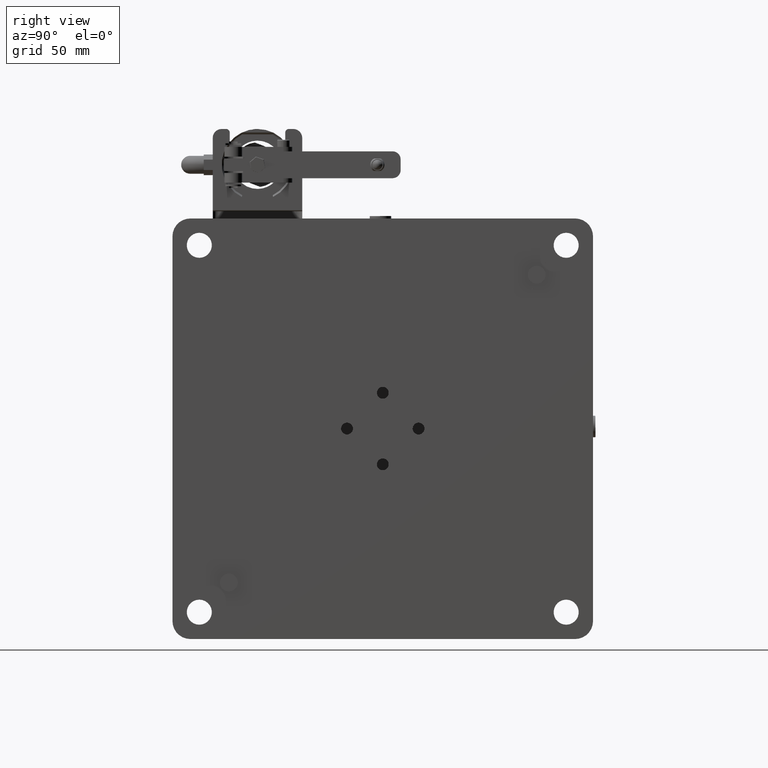
[diagram: clean part render]
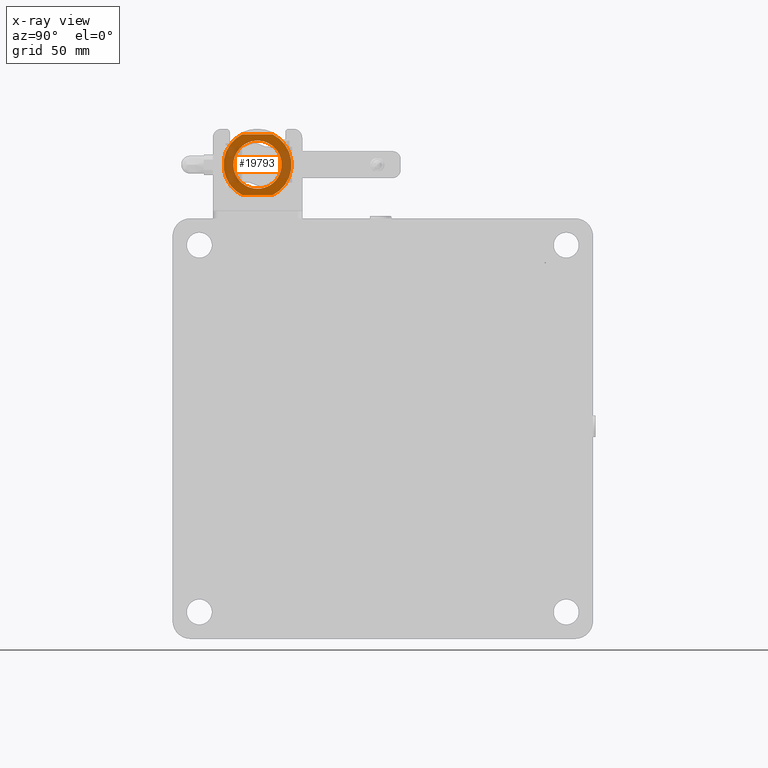
[diagram: x-ray — body ghosted, one internal face saturated and labeled with its STEP entity id]
A machine part, right view, then the same camera in x-ray: the body is ghosted and one INTERNAL B-rep face — a face not visible from any outside direction — is saturated and labeled: STEP entity #19793.
In plain terms, the highlighted planar face has unit normal (1, 0, -0).
Its self-contained STEP definition (entity closure, byte-faithful):
#319 = CARTESIAN_POINT ( 'NONE',  ( 478.4299721316714908, -70.41277426412671048, 725.6094016609064283 ) ) ;
#444 = CARTESIAN_POINT ( 'NONE',  ( 478.4299721316713772, -82.53106146318188507, 734.0871233093389492 ) ) ;
#576 = CARTESIAN_POINT ( 'NONE',  ( 478.4299721316717182, -82.57221340234056584, 744.0277515702651954 ) ) ;
#703 = CARTESIAN_POINT ( 'NONE',  ( 478.4299721316714340, -82.10182286779185290, 745.1229701118013509 ) ) ;
#813 = CARTESIAN_POINT ( 'NONE',  ( 478.4299721316716045, -69.99999999999995737, 762.1094016609064283 ) ) ;
#825 = CARTESIAN_POINT ( 'NONE',  ( 478.4299721316716045, -77.19551160918081223, 727.6867008416858198 ) ) ;
#843 = CARTESIAN_POINT ( 'NONE',  ( 478.4299721316714908, -56.61031980220248983, 737.3650884004620139 ) ) ;
#947 = DIRECTION ( 'NONE',  ( 1.000000000000000000, 1.331348243545152051E-16, -3.469695361064461299E-15 ) ) ;
#962 = CARTESIAN_POINT ( 'NONE',  ( 478.4299721316716045, -83.29304100346465134, 741.4643341623623201 ) ) ;
#977 = CARTESIAN_POINT ( 'NONE',  ( 478.4299721316716045, -65.08165009070974349, 751.6816150632687368 ) ) ;
#1095 = CARTESIAN_POINT ( 'NONE',  ( 478.4299721316715477, -66.47630045167740320, 752.1543813908563152 ) ) ;
#1186 = DIRECTION ( 'NONE',  ( 1.431843656995674906E-16, -1.000000000000000000, -1.431843656995674413E-16 ) ) ;
#1220 = CARTESIAN_POINT ( 'NONE',  ( 478.4299721316716614, -56.74570391391159774, 741.6734567740141983 ) ) ;
#1278 = ORIENTED_EDGE ( 'NONE', *, *, #1554, .T. ) ;
#1359 = CARTESIAN_POINT ( 'NONE',  ( 478.4299721316714908, -65.38832722186324986, 751.7981389091871733 ) ) ;
#1474 = CARTESIAN_POINT ( 'NONE',  ( 478.4299721316715477, -56.95502027041366233, 735.5857021115166390 ) ) ;
#1554 = EDGE_CURVE ( 'NONE', #17555, #22009, #9063, .T. ) ;
#1577 = CARTESIAN_POINT ( 'NONE',  ( 478.4299721316714908, -81.33129956679013617, 746.4479967857913607 ) ) ;
#1730 = CARTESIAN_POINT ( 'NONE',  ( 478.4299721316715477, -68.35526219502591516, 725.6845275030319726 ) ) ;
#1866 = CARTESIAN_POINT ( 'NONE',  ( 478.4299721316714908, -72.42960473721682035, 725.8298030196871196 ) ) ;
#1972 = CARTESIAN_POINT ( 'NONE',  ( 478.4299721316714908, -69.17409593088055431, 725.6094016609064283 ) ) ;
#2364 = CARTESIAN_POINT ( 'NONE',  ( 478.4299721316716045, -83.49996757574207606, 738.2840283873729277 ) ) ;
#2493 = CARTESIAN_POINT ( 'NONE',  ( 478.4299721316714908, -83.25429608610188836, 736.5453465478392445 ) ) ;
#2573 = ORIENTED_EDGE ( 'NONE', *, *, #4164, .T. ) ;
#2629 = CARTESIAN_POINT ( 'NONE',  ( 478.4299721316714908, -81.26824441751611516, 731.6743591960369031 ) ) ;
#2750 = CARTESIAN_POINT ( 'NONE',  ( 478.4299721316714908, -82.40067545656390280, 733.7711653038752502 ) ) ;
#2840 = CARTESIAN_POINT ( 'NONE',  ( 478.4299721316716045, -61.51471862576136118, 756.1094016609064283 ) ) ;
#2863 = CARTESIAN_POINT ( 'NONE',  ( 478.4299721316715477, -74.25154100632563825, 726.2929930738298481 ) ) ;
#2881 = CARTESIAN_POINT ( 'NONE',  ( 478.4299721316714340, -58.10724299048292352, 745.5265255764596759 ) ) ;
#2958 = CARTESIAN_POINT ( 'NONE',  ( 478.4299721316716045, -69.99999999999992895, 739.1094016609064283 ) ) ;
#2995 = CARTESIAN_POINT ( 'NONE',  ( 478.4299721316714340, -74.56236594720913047, 751.8226547282067713 ) ) ;
#3010 = CARTESIAN_POINT ( 'NONE',  ( 478.4299721316716045, -65.05722260786401989, 751.6720341310814320 ) ) ;
#3134 = CARTESIAN_POINT ( 'NONE',  ( 478.4299721316714908, -57.07560362923093322, 743.0524859625379577 ) ) ;
#3240 = CARTESIAN_POINT ( 'NONE',  ( 478.4299721316715477, -73.20499182827393270, 752.2267162836750458 ) ) ;
#3255 = CARTESIAN_POINT ( 'NONE',  ( 478.4299721316716614, -64.60670242972531696, 751.4936972319353572 ) ) ;
#3391 = CARTESIAN_POINT ( 'NONE',  ( 478.4299721316715477, -63.29035800220918162, 750.8279428574011263 ) ) ;
#3508 = CARTESIAN_POINT ( 'NONE',  ( 478.4299721316715477, -62.41877037334995748, 727.9389668819129611 ) ) ;
#3640 = CARTESIAN_POINT ( 'NONE',  ( 478.4299721316714908, -71.02941761316724012, 725.6375738517033369 ) ) ;
#3761 = CARTESIAN_POINT ( 'NONE',  ( 478.4299721316714908, -56.72040135877344369, 736.6797969237130701 ) ) ;
#3846 = DIRECTION ( 'NONE',  ( -2.921639538487251500E-15, 0.000000000000000000, -1.000000000000000000 ) ) ;
#3882 = CARTESIAN_POINT ( 'NONE',  ( 478.4299721316713203, -60.78342394690292849, 729.2340683460445234 ) ) ;
#3973 = CARTESIAN_POINT ( 'NONE',  ( 478.4299721316714908, -69.99999999999994316, 725.6094016609064283 ) ) ;
#4164 = EDGE_CURVE ( 'NONE', #22754, #8934, #14518, .T. ) ;
#4264 = FACE_OUTER_BOUND ( 'NONE', #11112, .T. ) ;
#4278 = CARTESIAN_POINT ( 'NONE',  ( 478.4299721316716614, -81.42270081919069469, 746.3049132701079316 ) ) ;
#4372 = VERTEX_POINT ( 'NONE', #3973 ) ;
#4395 = CARTESIAN_POINT ( 'NONE',  ( 478.4299721316713772, -83.42484170587707126, 737.4644885279240043 ) ) ;
#4530 = CARTESIAN_POINT ( 'NONE',  ( 478.4299721316713772, -83.20041984843327043, 736.2773553748264703 ) ) ;
#4610 = CIRCLE ( 'NONE', #7858, 19.00000000000001776 ) ;
#4660 = CARTESIAN_POINT ( 'NONE',  ( 478.4299721316714340, -83.19500379201163298, 741.9962463943538751 ) ) ;
#4774 = CARTESIAN_POINT ( 'NONE',  ( 478.4299721316714908, -83.11731462291058392, 735.9044098330263068 ) ) ;
#4790 = CARTESIAN_POINT ( 'NONE',  ( 478.4299721316716045, -58.45100072700311955, 746.1150469780661751 ) ) ;
#4893 = CARTESIAN_POINT ( 'NONE',  ( 478.4299721316714908, -77.72540610291318330, 750.1815595656532878 ) ) ;
#5041 = CARTESIAN_POINT ( 'NONE',  ( 478.4299721316716045, -57.75971092177155697, 744.8119314998156142 ) ) ;
#5149 = CARTESIAN_POINT ( 'NONE',  ( 478.4299721316716045, -75.70252983872629216, 751.3496907392066078 ) ) ;
#5165 = CARTESIAN_POINT ( 'NONE',  ( 478.4299721316714908, -58.92784209534849538, 746.8348077639222993 ) ) ;
#5290 = CARTESIAN_POINT ( 'NONE',  ( 478.4299721316714340, -56.49998378787105935, 738.6967150240240017 ) ) ;
#5350 = CARTESIAN_POINT ( 'NONE',  ( 478.4299721316715477, -69.99999999999994316, 752.6094016609064283 ) ) ;
#5409 = CARTESIAN_POINT ( 'NONE',  ( 478.4299721316716614, -72.83204628630913646, 752.3098215092569490 ) ) ;
#5428 = CARTESIAN_POINT ( 'NONE',  ( 478.4299721316714908, -59.79532746813879385, 730.2222436525748890 ) ) ;
#5547 = CARTESIAN_POINT ( 'NONE',  ( 478.4299721316714340, -66.79500817196351647, 725.9920870380376527 ) ) ;
#5665 = CARTESIAN_POINT ( 'NONE',  ( 478.4299721316714908, -69.99999999999994316, 725.6094016609064283 ) ) ;
#5679 = CARTESIAN_POINT ( 'NONE',  ( 478.4299721316714340, -72.10083195459263550, 725.7731525199142197 ) ) ;
#5796 = CARTESIAN_POINT ( 'NONE',  ( 478.4299721316715477, -64.29747016068603216, 726.8691125828455597 ) ) ;
#5921 = CARTESIAN_POINT ( 'NONE',  ( 478.4299721316715477, -57.37844486314536141, 734.3186102356504534 ) ) ;
#6061 = AXIS2_PLACEMENT_3D ( 'NONE', #2958, #18463, #22784 ) ;
#6170 = AXIS2_PLACEMENT_3D ( 'NONE', #813, #947, #18486 ) ;
#6319 = CARTESIAN_POINT ( 'NONE',  ( 478.4299721316713772, -83.47185618042841782, 740.1386659261938803 ) ) ;
#6439 = CARTESIAN_POINT ( 'NONE',  ( 478.4299721316716614, -82.38429557080588950, 744.5026992316246606 ) ) ;
#6564 = CARTESIAN_POINT ( 'NONE',  ( 478.4299721316714340, -81.23537234948373964, 731.6247647291347675 ) ) ;
#6690 = CARTESIAN_POINT ( 'NONE',  ( 478.4299721316714908, -83.28394183366090431, 741.5151280948172143 ) ) ;
#6709 = CARTESIAN_POINT ( 'NONE',  ( 478.4299721316715477, -59.16324843227747721, 747.1662315794293363 ) ) ;
#6815 = CARTESIAN_POINT ( 'NONE',  ( 478.4299721316713772, -82.62155513686766994, 743.9001930861415985 ) ) ;
#6827 = CARTESIAN_POINT ( 'NONE',  ( 478.4299721316715477, -69.99999999999994316, 752.6094016609064283 ) ) ;
#6931 = CARTESIAN_POINT ( 'NONE',  ( 478.4299721316716045, -77.48463693170114652, 750.3447740104594459 ) ) ;
#6946 = CARTESIAN_POINT ( 'NONE',  ( 478.4299721316716045, -68.25557172911875625, 752.4990605802846630 ) ) ;
#7062 = CARTESIAN_POINT ( 'NONE',  ( 478.4299721316716614, -70.82590406955496576, 752.6094016609067694 ) ) ;
#7078 = CARTESIAN_POINT ( 'NONE',  ( 478.4299721316714340, -56.66373844659649706, 737.0086367959227118 ) ) ;
#7200 = CARTESIAN_POINT ( 'NONE',  ( 478.4299721316717182, -56.76136601395315040, 741.7540003498867236 ) ) ;
#7306 = CARTESIAN_POINT ( 'NONE',  ( 478.4299721316715477, -77.00564531702032411, 750.6584009339579779 ) ) ;
#7322 = CARTESIAN_POINT ( 'NONE',  ( 478.4299721316714908, -57.42778659766328531, 734.1910517515411811 ) ) ;
#7418 = DIRECTION ( 'NONE',  ( 1.000000000000000000, 1.387778780781436801E-15, -4.163336342344322827E-15 ) ) ;
#7461 = CARTESIAN_POINT ( 'NONE',  ( 478.4299721316713203, -61.94317008156579618, 728.2726500932251383 ) ) ;
#7584 = CARTESIAN_POINT ( 'NONE',  ( 478.4299721316712635, -67.43594488690416711, 725.8551055748120007 ) ) ;
#7596 = ORIENTED_EDGE ( 'NONE', *, *, #19647, .T. ) ;
#7858 = AXIS2_PLACEMENT_3D ( 'NONE', #25076, #7418, #3846 ) ;
#8220 = CARTESIAN_POINT ( 'NONE',  ( 478.4299721316714908, -82.92439637086823723, 735.1663173595691205 ) ) ;
#8350 = CARTESIAN_POINT ( 'NONE',  ( 478.4299721316714908, -77.29166785255317507, 727.7478518167772563 ) ) ;
#8473 = CARTESIAN_POINT ( 'NONE',  ( 478.4299721316715477, -81.71854119620185486, 745.8190436592793731 ) ) ;
#8599 = CARTESIAN_POINT ( 'NONE',  ( 478.4299721316714908, -82.47752373178279583, 733.9550611558689752 ) ) ;
#8616 = CARTESIAN_POINT ( 'NONE',  ( 478.4299721316714340, -56.69353043206317011, 736.8306792168876882 ) ) ;
#8728 = CARTESIAN_POINT ( 'NONE',  ( 478.4299721316715477, -82.81640858696401608, 743.3609426676664498 ) ) ;
#8743 = CARTESIAN_POINT ( 'NONE',  ( 478.4299721316717182, -56.50003242425783156, 739.9347749346711680 ) ) ;
#8846 = CARTESIAN_POINT ( 'NONE',  ( 478.4299721316714340, -74.99471061857745724, 751.6514742875641559 ) ) ;
#8860 = CARTESIAN_POINT ( 'NONE',  ( 478.4299721316716045, -67.64504644749912643, 752.4024387696607619 ) ) ;
#8934 = VERTEX_POINT ( 'NONE', #15730 ) ;
#8968 = CARTESIAN_POINT ( 'NONE',  ( 478.4299721316715477, -76.41712391530930404, 751.0021586705188383 ) ) ;
#8986 = CARTESIAN_POINT ( 'NONE',  ( 478.4299721316716045, -56.73542148888962799, 741.6197146364664832 ) ) ;
#9063 = LINE ( 'NONE', #20622, #24373 ) ;
#9099 = CARTESIAN_POINT ( 'NONE',  ( 478.4299721316714908, -75.07515318747715583, 751.6191436005273090 ) ) ;
#9114 = CARTESIAN_POINT ( 'NONE',  ( 478.4299721316714340, -59.65843562652155896, 747.8091273600157365 ) ) ;
#9214 = CARTESIAN_POINT ( 'NONE',  ( 478.4299721316715477, -69.99999999999994316, 752.6094016609064283 ) ) ;
#9230 = CARTESIAN_POINT ( 'NONE',  ( 478.4299721316713772, -57.18359141307799831, 734.8578606540789906 ) ) ;
#9334 = CARTESIAN_POINT ( 'NONE',  ( 478.4299721316714340, -78.05682991834707707, 749.9461532287925820 ) ) ;
#9482 = CARTESIAN_POINT ( 'NONE',  ( 478.4299721316715477, -58.63845015587993714, 731.8177338083511358 ) ) ;
#9599 = CARTESIAN_POINT ( 'NONE',  ( 478.4299721316714908, -62.99435468253182790, 727.5604023880373461 ) ) ;
#10105 = CARTESIAN_POINT ( 'NONE',  ( 478.4299721316714908, -78.88715800858918215, 728.9047291294947399 ) ) ;
#10238 = CARTESIAN_POINT ( 'NONE',  ( 478.4299721316714340, -83.23863398606999908, 736.4648029719950273 ) ) ;
#10364 = CARTESIAN_POINT ( 'NONE',  ( 478.4299721316714908, -76.01356845081669178, 727.0075787930006754 ) ) ;
#10458 = EDGE_CURVE ( 'NONE', #4372, #12829, #11188, .T. ) ;
#10486 = CARTESIAN_POINT ( 'NONE',  ( 478.4299721316716614, -83.26457851111726427, 736.5990886853672919 ) ) ;
#10611 = CARTESIAN_POINT ( 'NONE',  ( 478.4299721316714908, -82.24028907814907541, 733.4068718217630476 ) ) ;
#10631 = CARTESIAN_POINT ( 'NONE',  ( 478.4299721316714908, -68.97058238726155821, 752.5812294701092924 ) ) ;
#10758 = CARTESIAN_POINT ( 'NONE',  ( 478.4299721316714340, -62.94921518140939298, 750.6228694752987849 ) ) ;
#10875 = CARTESIAN_POINT ( 'NONE',  ( 478.4299721316716045, -57.52247626819227833, 744.2637421658706671 ) ) ;
#11009 = CARTESIAN_POINT ( 'NONE',  ( 478.4299721316715477, -67.89916804559486252, 752.4456508018985232 ) ) ;
#11112 = EDGE_LOOP ( 'NONE', ( #1278, #12095, #2573, #22421 ) ) ;
#11120 = EDGE_CURVE ( 'NONE', #8934, #17555, #11731, .T. ) ;
#11142 = CARTESIAN_POINT ( 'NONE',  ( 478.4299721316716045, -62.56495753514662539, 727.8411572433819856 ) ) ;
#11188 = B_SPLINE_CURVE_WITH_KNOTS ( 'NONE', 3,
 ( #13928, #319, #3640, #11389, #5679, #13408, #11523, #19292, #1866, #16209, #16469, #2863, #22200, #23971, #20045, #16086, #24223, #21820, #10364, #12274, #12141, #825, #8350, #17870, #14298, #10105, #12022, #18244, #14047, #19783, #12514, #6564, #2629, #21947, #20279, #10611, #2750, #8599, #23721, #444, #21700, #16344, #8220, #4774, #4530, #10238, #2493, #10486, #14417, #4395, #2364, #15959, #6319, #24109, #22079, #18371, #962, #6690, #14167, #4660, #19908, #8728, #18123, #6815, #18006, #576, #23849, #6439, #703, #8473, #12395, #4278, #20161, #1577, #14908, #22825, #16846, #12888, #9334, #4893, #24601, #6931, #20656, #7306, #8968, #5149, #15033, #18501, #9099, #22571, #8846, #2995, #12634, #3240, #5409, #24477, #16962, #16593, #24861, #16720, #7062, #9214 ),
 .UNSPECIFIED., .F., .F.,
 ( 4, 1, 1, 1, 1, 2, 2, 1, 1, 1, 1, 2, 2, 1, 1, 1, 2, 2, 2, 1, 1, 1, 2, 2, 1, 1, 1, 1, 2, 2, 1, 1, 1, 1, 2, 2, 2, 1, 1, 1, 1, 2, 2, 1, 1, 1, 1, 2, 2, 1, 1, 1, 2, 2, 2, 1, 1, 1, 2, 2, 1, 1, 1, 1, 2, 2, 1, 1, 1, 1, 2, 2, 4 ),
 ( 0.000000000000000000, 0.03124999999986316501, 0.04687499999979422016, 0.05468749999975865139, 0.05859374999974034659, 0.06054687499973047948, 0.06249999999972060544, 0.09374999999954373997, 0.1093749999994557826, 0.1171874999994122757, 0.1210937499993905292, 0.1230468749993810507, 0.1249999999993715860, 0.1562499999992092992, 0.1718749999991285859, 0.1796874999990863142, 0.1835937499990647481, 0.1874999999990432098, 0.2499999999987444765, 0.2812499999985947907, 0.2968749999985202392, 0.3046874999984798826, 0.3085937499984630628, 0.3124999999984462429, 0.3437499999982894794, 0.3593749999982145393, 0.3671874999981802890, 0.3710937499981631915, 0.3730468749981546428, 0.3749999999981460941, 0.4062499999981205590, 0.4218749999981079579, 0.4296874999981015741, 0.4335937499980985210, 0.4355468749981009080, 0.4374999999981032950, 0.4999999999980496712, 0.5312499999980185850, 0.5468749999980072607, 0.5546874999979973797, 0.5585937499979966026, 0.5605468749980003773, 0.5624999999980041521, 0.5937499999980974108, 0.6093749999981439291, 0.6171874999981707965, 0.6210937499981842302, 0.6230468749981911136, 0.6249999999981979970, 0.6562499999983711918, 0.6718749999984612309, 0.6796874999985095256, 0.6835937499985307308, 0.6874999999985519361, 0.7499999999988771204, 0.7812499999990373256, 0.7968749999991198152, 0.8046874999991611155, 0.8085937499991799893, 0.8124999999991988631, 0.8437499999993367528, 0.8593749999994061417, 0.8671874999994392264, 0.8710937499994553246, 0.8730468749994634292, 0.8749999999994715338, 0.9062499999995904387, 0.9218749999996506128, 0.9296874999996806999, 0.9335937499996970201, 0.9355468749997052358, 0.9374999999997134514, 1.000000000000000000 ),
 .UNSPECIFIED. ) ;
#11257 = CARTESIAN_POINT ( 'NONE',  ( 478.4299721316714340, -67.35540131104005468, 725.8707676748493896 ) ) ;
#11376 = CARTESIAN_POINT ( 'NONE',  ( 478.4299721316715477, -57.89817713216166339, 733.0958332100744883 ) ) ;
#11389 = CARTESIAN_POINT ( 'NONE',  ( 478.4299721316714908, -71.74442827120280697, 725.7197427415281936 ) ) ;
#11510 = CARTESIAN_POINT ( 'NONE',  ( 478.4299721316714908, -64.97772164841674680, 726.5783401977325866 ) ) ;
#11523 = CARTESIAN_POINT ( 'NONE',  ( 478.4299721316715477, -72.35495355255967809, 725.8163645521523222 ) ) ;
#11631 = CARTESIAN_POINT ( 'NONE',  ( 478.4299721316716045, -65.43763405297175950, 726.3961485935296878 ) ) ;
#11731 = CIRCLE ( 'NONE', #6061, 19.00000000000012790 ) ;
#12010 = FACE_BOUND ( 'NONE', #14476, .T. ) ;
#12022 = CARTESIAN_POINT ( 'NONE',  ( 478.4299721316714340, -79.87533331473288456, 729.8928256075848822 ) ) ;
#12095 = ORIENTED_EDGE ( 'NONE', *, *, #22922, .T. ) ;
#12141 = CARTESIAN_POINT ( 'NONE',  ( 478.4299721316714908, -77.05078481889596276, 727.5959338466348072 ) ) ;
#12274 = CARTESIAN_POINT ( 'NONE',  ( 478.4299721316714908, -76.70964199831439601, 727.3908604646190952 ) ) ;
#12395 = CARTESIAN_POINT ( 'NONE',  ( 478.4299721316716045, -81.51346781422182630, 746.1601864798365114 ) ) ;
#12514 = CARTESIAN_POINT ( 'NONE',  ( 478.4299721316716045, -81.17043477893433590, 731.5281720341529308 ) ) ;
#12527 = CARTESIAN_POINT ( 'NONE',  ( 478.4299721316716045, -65.74845899397315918, 751.9258102481014703 ) ) ;
#12634 = CARTESIAN_POINT ( 'NONE',  ( 478.4299721316715477, -73.94308430186194414, 752.0337980315853201 ) ) ;
#12780 = CARTESIAN_POINT ( 'NONE',  ( 478.4299721316717182, -67.11315526711116775, 752.3044054530939775 ) ) ;
#12829 = VERTEX_POINT ( 'NONE', #5350 ) ;
#12888 = CARTESIAN_POINT ( 'NONE',  ( 478.4299721316713772, -78.69972569887499958, 749.4509660346033115 ) ) ;
#12903 = CARTESIAN_POINT ( 'NONE',  ( 478.4299721316714908, -62.70833214754331664, 750.4709515050736854 ) ) ;
#13030 = CARTESIAN_POINT ( 'NONE',  ( 478.4299721316713772, -56.88268537716378148, 742.3143934890075570 ) ) ;
#13279 = CARTESIAN_POINT ( 'NONE',  ( 478.4299721316714340, -67.51813118610503750, 725.8394745524154814 ) ) ;
#13408 = CARTESIAN_POINT ( 'NONE',  ( 478.4299721316714908, -72.27875838488058946, 725.8029387424754759 ) ) ;
#13928 = CARTESIAN_POINT ( 'NONE',  ( 478.4299721316714908, -69.99999999999994316, 725.6094016609064283 ) ) ;
#14047 = CARTESIAN_POINT ( 'NONE',  ( 478.4299721316716045, -80.83675156751209556, 731.0525717421774061 ) ) ;
#14167 = CARTESIAN_POINT ( 'NONE',  ( 478.4299721316715477, -83.27959864122439626, 741.5390063981026287 ) ) ;
#14298 = CARTESIAN_POINT ( 'NONE',  ( 478.4299721316715477, -78.16711640390798266, 728.3197249050584787 ) ) ;
#14417 = CARTESIAN_POINT ( 'NONE',  ( 478.4299721316716045, -83.26992812261572396, 736.6275383260118588 ) ) ;
#14476 = EDGE_LOOP ( 'NONE', ( #17784, #7596 ) ) ;
#14518 = LINE ( 'NONE', #18606, #22944 ) ;
#14545 = CARTESIAN_POINT ( 'NONE',  ( 478.4299721316715477, -62.66140487508710066, 750.4407012276697060 ) ) ;
#14669 = CARTESIAN_POINT ( 'NONE',  ( 478.4299721316716614, -58.82956522099172503, 746.6906312875876210 ) ) ;
#14800 = CARTESIAN_POINT ( 'NONE',  ( 478.4299721316716045, -65.20920857499378087, 751.7309567978466021 ) ) ;
#14908 = CARTESIAN_POINT ( 'NONE',  ( 478.4299721316716614, -80.78967675603678344, 747.2765180646379122 ) ) ;
#14925 = CARTESIAN_POINT ( 'NONE',  ( 478.4299721316714908, -57.45792737334524958, 744.1041122794920284 ) ) ;
#15033 = CARTESIAN_POINT ( 'NONE',  ( 478.4299721316716045, -75.33823635678795938, 751.5100771175583532 ) ) ;
#15052 = CARTESIAN_POINT ( 'NONE',  ( 478.4299721316715477, -58.57729918079697740, 731.9138900517216371 ) ) ;
#15186 = CARTESIAN_POINT ( 'NONE',  ( 478.4299721316714340, -62.27459389703592052, 728.0372437562789401 ) ) ;
#15432 = CARTESIAN_POINT ( 'NONE',  ( 478.4299721316716045, -61.30027430100889063, 728.7678372874830757 ) ) ;
#15730 = CARTESIAN_POINT ( 'NONE',  ( 478.4299721316716045, -78.48528137423856776, 756.1094016609064283 ) ) ;
#15959 = CARTESIAN_POINT ( 'NONE',  ( 478.4299721316716614, -83.50001621212881275, 739.5220882976734629 ) ) ;
#16086 = CARTESIAN_POINT ( 'NONE',  ( 478.4299721316714340, -74.91834990931815241, 726.5371882585552612 ) ) ;
#16209 = CARTESIAN_POINT ( 'NONE',  ( 478.4299721316716045, -72.88684473311650436, 725.9143978688092602 ) ) ;
#16344 = CARTESIAN_POINT ( 'NONE',  ( 478.4299721316713772, -82.71325306740862970, 734.5470357139967064 ) ) ;
#16361 = CARTESIAN_POINT ( 'NONE',  ( 478.4299721316714340, -56.70695899653521366, 736.7544691594230244 ) ) ;
#16456 = PLANE ( 'NONE',  #6170 ) ;
#16469 = CARTESIAN_POINT ( 'NONE',  ( 478.4299721316716045, -73.52369954872112601, 726.0644219311144525 ) ) ;
#16486 = CARTESIAN_POINT ( 'NONE',  ( 478.4299721316714908, -56.71605816633893937, 736.7036752269816589 ) ) ;
#16593 = CARTESIAN_POINT ( 'NONE',  ( 478.4299721316716045, -72.51031297557631206, 752.3739801720105334 ) ) ;
#16607 = CARTESIAN_POINT ( 'NONE',  ( 478.4299721316716614, -58.73175558249132422, 746.5444441257984636 ) ) ;
#16720 = CARTESIAN_POINT ( 'NONE',  ( 478.4299721316716045, -71.64473780540963332, 752.5342758187809977 ) ) ;
#16739 = CARTESIAN_POINT ( 'NONE',  ( 478.4299721316715477, -61.83288359671565360, 749.8990784173720385 ) ) ;
#16846 = CARTESIAN_POINT ( 'NONE',  ( 478.4299721316714908, -79.21657605303066418, 748.9847349759244253 ) ) ;
#16861 = CARTESIAN_POINT ( 'NONE',  ( 478.4299721316717751, -57.49025806039201569, 744.1845548484171786 ) ) ;
#16962 = CARTESIAN_POINT ( 'NONE',  ( 478.4299721316716614, -72.56405511313917600, 752.3636977469824387 ) ) ;
#16978 = CARTESIAN_POINT ( 'NONE',  ( 478.4299721316715477, -57.31126275187825314, 734.4977288823026811 ) ) ;
#17108 = CARTESIAN_POINT ( 'NONE',  ( 478.4299721316713772, -63.58287608390705969, 727.2166446516127962 ) ) ;
#17190 = DIRECTION ( 'NONE',  ( -1.331348243545152051E-16, 1.000000000000000000, 4.619372824589932397E-31 ) ) ;
#17239 = CARTESIAN_POINT ( 'NONE',  ( 478.4299721316714340, -67.16795371382930568, 725.9089818124977000 ) ) ;
#17555 = VERTEX_POINT ( 'NONE', #20998 ) ;
#17784 = ORIENTED_EDGE ( 'NONE', *, *, #10458, .T. ) ;
#17870 = CARTESIAN_POINT ( 'NONE',  ( 478.4299721316715477, -77.33859512487381949, 727.7781020941046108 ) ) ;
#18006 = CARTESIAN_POINT ( 'NONE',  ( 478.4299721316715477, -82.59204570877626850, 743.9767552405941160 ) ) ;
#18123 = CARTESIAN_POINT ( 'NONE',  ( 478.4299721316715477, -82.68873724814623927, 743.7210744394706126 ) ) ;
#18244 = CARTESIAN_POINT ( 'NONE',  ( 478.4299721316715477, -80.34156437319801114, 730.4096759615224528 ) ) ;
#18260 = CARTESIAN_POINT ( 'NONE',  ( 478.4299721316713772, -56.52814381957140455, 738.0801373954170685 ) ) ;
#18371 = CARTESIAN_POINT ( 'NONE',  ( 478.4299721316713772, -83.30646956793668778, 741.3881241048777611 ) ) ;
#18388 = CARTESIAN_POINT ( 'NONE',  ( 478.4299721316715477, -57.46893853681053344, 744.1316800124516249 ) ) ;
#18463 = DIRECTION ( 'NONE',  ( 1.000000000000000000, -3.851859888774454190E-30, -1.387778780781440548E-15 ) ) ;
#18486 = DIRECTION ( 'NONE',  ( -3.469695361064461299E-15, 0.000000000000000000, -1.000000000000000000 ) ) ;
#18501 = CARTESIAN_POINT ( 'NONE',  ( 478.4299721316714908, -75.15434050490711115, 751.5869253927362479 ) ) ;
#18514 = CARTESIAN_POINT ( 'NONE',  ( 478.4299721316714908, -61.11284199173105947, 749.3140741926324608 ) ) ;
#18606 = CARTESIAN_POINT ( 'NONE',  ( 478.4299721316716045, -93.78123552728916934, 756.1094016609064283 ) ) ;
#18640 = CARTESIAN_POINT ( 'NONE',  ( 478.4299721316714908, -57.59932454338974850, 744.4476380178012960 ) ) ;
#18778 = CARTESIAN_POINT ( 'NONE',  ( 478.4299721316716045, -67.59426278384658815, 752.3933414997155751 ) ) ;
#18902 = CARTESIAN_POINT ( 'NONE',  ( 478.4299721316714908, -64.84565949490905723, 726.6318779291510737 ) ) ;
#19020 = CARTESIAN_POINT ( 'NONE',  ( 478.4299721316714908, -59.21032324432076877, 730.9422852566375468 ) ) ;
#19112 = B_SPLINE_CURVE_WITH_KNOTS ( 'NONE', 3,
 ( #6827, #24361, #10631, #6946, #11009, #20429, #8860, #18778, #22215, #12780, #1095, #12527, #1359, #14800, #22587, #977, #3010, #3255, #20295, #3391, #10758, #24237, #12903, #14545, #16739, #18514, #20549, #9114, #6709, #5165, #14669, #24123, #16607, #4790, #2881, #5041, #18640, #10875, #16861, #18388, #14925, #22466, #3134, #13030, #24618, #7200, #1220, #8986, #24491, #20805, #8743, #5290, #18260, #843, #7078, #8616, #16361, #16486, #3761, #24741, #1474, #9230, #16978, #5921, #24879, #7322, #25114, #24998, #11376, #22844, #21425, #15052, #9482, #20930, #19020, #5428, #3882, #15432, #7461, #15186, #3508, #21174, #11142, #9599, #17108, #5796, #23211, #18902, #22969, #11510, #19279, #11631, #23083, #5547, #17239, #11257, #7584, #19397, #13279, #1730, #1972, #5665 ),
 .UNSPECIFIED., .F., .F.,
 ( 4, 1, 1, 1, 1, 2, 2, 1, 1, 1, 1, 2, 2, 1, 1, 1, 2, 2, 2, 1, 1, 1, 2, 2, 1, 1, 1, 1, 2, 2, 1, 1, 1, 1, 2, 2, 2, 1, 1, 1, 1, 2, 2, 1, 1, 1, 1, 2, 2, 1, 1, 1, 2, 2, 2, 1, 1, 1, 2, 2, 1, 1, 1, 1, 2, 2, 1, 1, 1, 1, 2, 2, 4 ),
 ( 0.000000000000000000, 0.03124999999996749128, 0.04687499999995176081, 0.05468749999994332311, 0.05859374999993910427, 0.06054687499993627320, 0.06249999999993344213, 0.09374999999986850796, 0.1093749999998366446, 0.1171874999998220174, 0.1210937499998146899, 0.1230468749998110262, 0.1249999999998073763, 0.1562499999997522260, 0.1718749999997250533, 0.1796874999997129796, 0.1835937499997093714, 0.1874999999997057631, 0.2499999999996284916, 0.2812499999995898281, 0.2968749999995703992, 0.3046874999995635158, 0.3085937499995599631, 0.3124999999995564104, 0.3437499999995485833, 0.3593749999995480837, 0.3671874999995478617, 0.3710937499995442534, 0.3730468749995423106, 0.3749999999995404232, 0.4062499999995470845, 0.4218749999995504152, 0.4296874999995482503, 0.4335937499995470845, 0.4355468749995465849, 0.4374999999995460298, 0.4999999999995374811, 0.5312499999995289324, 0.5468749999995247135, 0.5546874999995267119, 0.5585937499995277111, 0.5605468749995281552, 0.5624999999995284883, 0.5937499999995591304, 0.6093749999995743405, 0.6171874999995856648, 0.6210937499995951017, 0.6230468749995998756, 0.6249999999996046496, 0.6562499999996104227, 0.6718749999996167510, 0.6796874999996198596, 0.6835937499996215250, 0.6874999999996230793, 0.7499999999997161160, 0.7812499999997651878, 0.7968749999997919442, 0.8046874999998053779, 0.8085937499998097078, 0.8124999999998138156, 0.8437499999998610001, 0.8593749999998842037, 0.8671874999998940847, 0.8710937499999006350, 0.8730468749999020783, 0.8749999999999034106, 0.9062499999999149569, 0.9218749999999212852, 0.9296874999999240607, 0.9335937499999258371, 0.9355468749999272804, 0.9374999999999287237, 1.000000000000000000 ),
 .UNSPECIFIED. ) ;
#19279 = CARTESIAN_POINT ( 'NONE',  ( 478.4299721316715477, -65.00528938141113144, 726.5673290342533619 ) ) ;
#19292 = CARTESIAN_POINT ( 'NONE',  ( 478.4299721316716614, -72.40573721618345360, 725.8254618220973953 ) ) ;
#19397 = CARTESIAN_POINT ( 'NONE',  ( 478.4299721316715477, -67.48968702444587109, 725.8448231497932284 ) ) ;
#19647 = EDGE_CURVE ( 'NONE', #12829, #4372, #19112, .T. ) ;
#19783 = CARTESIAN_POINT ( 'NONE',  ( 478.4299721316713772, -81.07215790452870863, 731.3839955577705041 ) ) ;
#19793 = ADVANCED_FACE ( 'NONE', ( #4264, #12010 ), #16456, .T. ) ;
#19908 = CARTESIAN_POINT ( 'NONE',  ( 478.4299721316716045, -83.04497972964243502, 742.6331012102065188 ) ) ;
#20045 = CARTESIAN_POINT ( 'NONE',  ( 478.4299721316715477, -74.86735357960796478, 726.5173559521095967 ) ) ;
#20161 = CARTESIAN_POINT ( 'NONE',  ( 478.4299721316716045, -81.36154984411351165, 746.4010695134703610 ) ) ;
#20279 = CARTESIAN_POINT ( 'NONE',  ( 478.4299721316716614, -81.89275700941132641, 732.6922777450415651 ) ) ;
#20295 = CARTESIAN_POINT ( 'NONE',  ( 478.4299721316716045, -63.98643154988150883, 751.2112245290886676 ) ) ;
#20429 = CARTESIAN_POINT ( 'NONE',  ( 478.4299721316716045, -67.72124161521985286, 752.4158645793373807 ) ) ;
#20549 = CARTESIAN_POINT ( 'NONE',  ( 478.4299721316715477, -60.12466668510681700, 748.3259777140712004 ) ) ;
#20622 = CARTESIAN_POINT ( 'NONE',  ( 478.4299721316714340, -69.99999999999995737, 722.1094016609064283 ) ) ;
#20656 = CARTESIAN_POINT ( 'NONE',  ( 478.4299721316714908, -77.43504246490920195, 750.3776460784081337 ) ) ;
#20805 = CARTESIAN_POINT ( 'NONE',  ( 478.4299721316716614, -56.57515829412284347, 740.7543147941499910 ) ) ;
#20930 = CARTESIAN_POINT ( 'NONE',  ( 478.4299721316714908, -58.66870043318739647, 731.7708065360550336 ) ) ;
#20998 = CARTESIAN_POINT ( 'NONE',  ( 478.4299721316714908, -78.48528137423856776, 722.1094016609064283 ) ) ;
#21174 = CARTESIAN_POINT ( 'NONE',  ( 478.4299721316716045, -62.51536306828270284, 727.8740293113914959 ) ) ;
#21425 = CARTESIAN_POINT ( 'NONE',  ( 478.4299721316716045, -58.48653218575779533, 732.0586168420037438 ) ) ;
#21700 = CARTESIAN_POINT ( 'NONE',  ( 478.4299721316713203, -82.54207262665104849, 734.1146910423101417 ) ) ;
#21820 = CARTESIAN_POINT ( 'NONE',  ( 478.4299721316714340, -75.39329757067362436, 726.7251060900355242 ) ) ;
#21947 = CARTESIAN_POINT ( 'NONE',  ( 478.4299721316714340, -81.54899927293639905, 732.1037563435683069 ) ) ;
#22009 = VERTEX_POINT ( 'NONE', #24979 ) ;
#22079 = CARTESIAN_POINT ( 'NONE',  ( 478.4299721316714908, -83.33626155340331820, 741.2101665258018102 ) ) ;
#22200 = CARTESIAN_POINT ( 'NONE',  ( 478.4299721316714340, -74.61167277831106048, 726.4206644126945775 ) ) ;
#22215 = CARTESIAN_POINT ( 'NONE',  ( 478.4299721316716045, -67.57039526276878405, 752.3890003021201665 ) ) ;
#22421 = ORIENTED_EDGE ( 'NONE', *, *, #11120, .T. ) ;
#22466 = CARTESIAN_POINT ( 'NONE',  ( 478.4299721316717182, -57.28674693264795081, 743.6717676079841794 ) ) ;
#22571 = CARTESIAN_POINT ( 'NONE',  ( 478.4299721316715477, -75.02227835152800139, 751.6404631241027801 ) ) ;
#22587 = CARTESIAN_POINT ( 'NONE',  ( 478.4299721316716614, -65.13264642044660491, 751.7014473697249741 ) ) ;
#22754 = VERTEX_POINT ( 'NONE', #2840 ) ;
#22784 = DIRECTION ( 'NONE',  ( 0.000000000000000000, 0.000000000000000000, -1.000000000000000000 ) ) ;
#22825 = CARTESIAN_POINT ( 'NONE',  ( 478.4299721316716614, -80.20467253199362290, 747.9965596689256699 ) ) ;
#22844 = CARTESIAN_POINT ( 'NONE',  ( 478.4299721316714340, -58.28145880376320775, 732.3997596625807773 ) ) ;
#22922 = EDGE_CURVE ( 'NONE', #22009, #22754, #4610, .T. ) ;
#22944 = VECTOR ( 'NONE', #1186, 1000.000000000000000 ) ;
#22969 = CARTESIAN_POINT ( 'NONE',  ( 478.4299721316715477, -64.92484681241518274, 726.5996597213292034 ) ) ;
#23083 = CARTESIAN_POINT ( 'NONE',  ( 478.4299721316714340, -66.05691569845465949, 726.1850052900941819 ) ) ;
#23211 = CARTESIAN_POINT ( 'NONE',  ( 478.4299721316714908, -64.66176364286914691, 726.7087262043939973 ) ) ;
#23721 = CARTESIAN_POINT ( 'NONE',  ( 478.4299721316713203, -82.50974193959335423, 734.0342484733525907 ) ) ;
#23849 = CARTESIAN_POINT ( 'NONE',  ( 478.4299721316716614, -82.56263247018877394, 744.0521790530145836 ) ) ;
#23971 = CARTESIAN_POINT ( 'NONE',  ( 478.4299721316716045, -74.79079142509954181, 726.4878465240035439 ) ) ;
#24109 = CARTESIAN_POINT ( 'NONE',  ( 478.4299721316715477, -83.38968019779740359, 740.8537149211995256 ) ) ;
#24123 = CARTESIAN_POINT ( 'NONE',  ( 478.4299721316716614, -58.76462765047735104, 746.5940385926401177 ) ) ;
#24223 = CARTESIAN_POINT ( 'NONE',  ( 478.4299721316714908, -74.94277739211091216, 726.5467691907215340 ) ) ;
#24237 = CARTESIAN_POINT ( 'NONE',  ( 478.4299721316714908, -62.80448839100301228, 750.5321024801999101 ) ) ;
#24361 = CARTESIAN_POINT ( 'NONE',  ( 478.4299721316714908, -69.58722573611832729, 752.6094016609065420 ) ) ;
#24373 = VECTOR ( 'NONE', #17190, 1000.000000000000000 ) ;
#24477 = CARTESIAN_POINT ( 'NONE',  ( 478.4299721316714908, -72.64459868903408335, 752.3480356469318622 ) ) ;
#24491 = CARTESIAN_POINT ( 'NONE',  ( 478.4299721316714340, -56.73007187738412682, 741.5912649957928124 ) ) ;
#24601 = CARTESIAN_POINT ( 'NONE',  ( 478.4299721316714340, -77.58122962661937549, 750.2798364399719730 ) ) ;
#24618 = CARTESIAN_POINT ( 'NONE',  ( 478.4299721316715477, -56.79958015161003715, 741.9414479471148525 ) ) ;
#24741 = CARTESIAN_POINT ( 'NONE',  ( 478.4299721316714908, -56.80499620802040539, 736.2225569274074815 ) ) ;
#24861 = CARTESIAN_POINT ( 'NONE',  ( 478.4299721316716614, -72.48186881388122060, 752.3793287693976026 ) ) ;
#24879 = CARTESIAN_POINT ( 'NONE',  ( 478.4299721316714908, -57.40795429123134141, 734.2420480812066899 ) ) ;
#24979 = CARTESIAN_POINT ( 'NONE',  ( 478.4299721316714908, -61.51471862576135408, 722.1094016609064283 ) ) ;
#24998 = CARTESIAN_POINT ( 'NONE',  ( 478.4299721316714908, -57.61570442916751489, 733.7161040902243485 ) ) ;
#25076 = CARTESIAN_POINT ( 'NONE',  ( 478.4299721316715477, -69.99999999999992895, 739.1094016609064283 ) ) ;
#25114 = CARTESIAN_POINT ( 'NONE',  ( 478.4299721316713772, -57.43736752981276794, 734.1666242687962267 ) ) ;